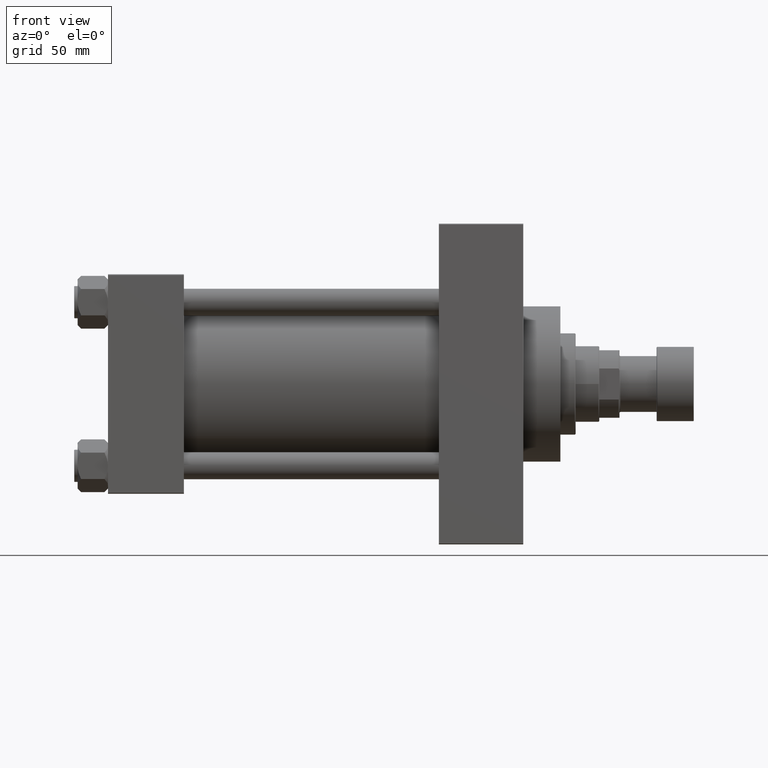
[diagram: clean part render]
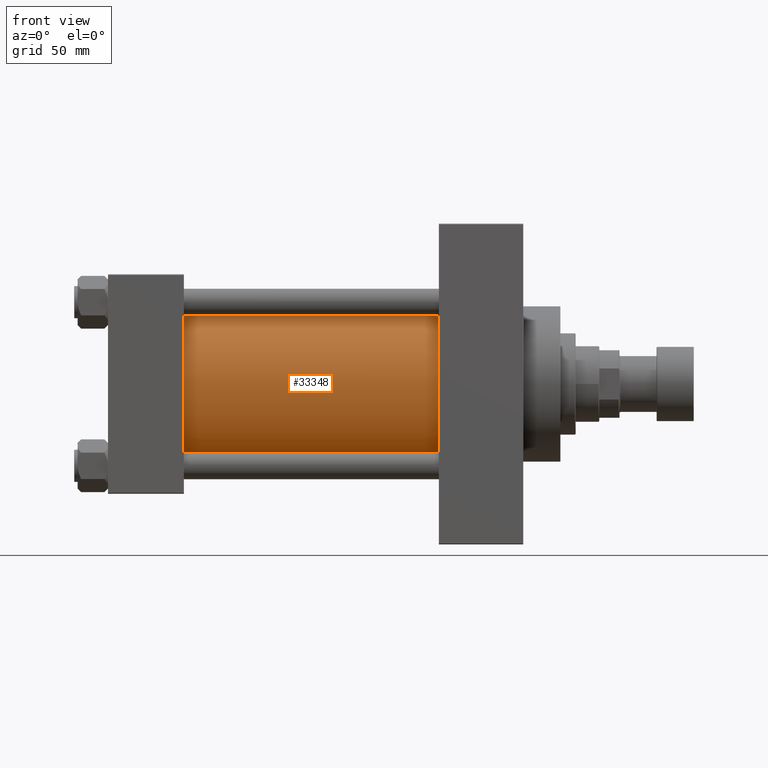
[diagram: same view with one face highlighted and labeled with its STEP entity id]
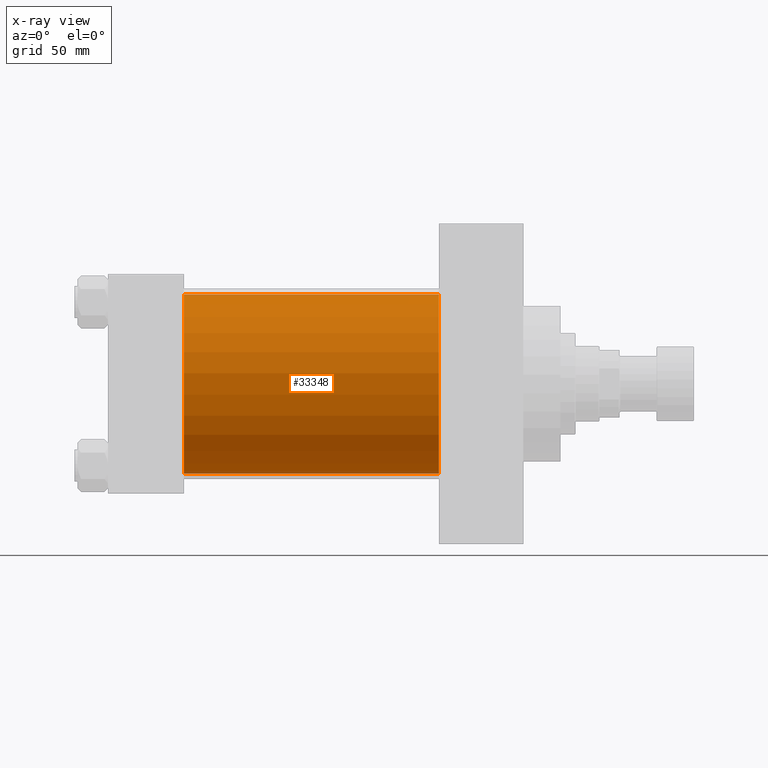
[diagram: x-ray of the same camera — body ghosted, the highlighted face saturated]
A machine part, front view. The second image highlights one B-rep face of the part: STEP entity #33348.
The next image is the same camera in x-ray: the body ghosted, the highlighted face saturated — about 2% of this face is hidden behind the body in this view.
In plain terms, the highlighted cylindrical surface (partial cylindrical patch) has radius 53 mm, axis along (-1, -0, -0).
Its self-contained STEP definition (entity closure, byte-faithful):
#329 = EDGE_LOOP ( 'NONE', ( #33036, #21031, #33994, #26674 ) ) ;
#1617 = CIRCLE ( 'NONE', #32701, 53.00000000000000711 ) ;
#3156 = EDGE_CURVE ( 'NONE', #4679, #5238, #30748, .T. ) ;
#4679 = VERTEX_POINT ( 'NONE', #46498 ) ;
#5238 = VERTEX_POINT ( 'NONE', #5521 ) ;
#5521 = CARTESIAN_POINT ( 'NONE',  ( 44.99999999999998579, 3.888542821515762466E-15, -53.00000000000000711 ) ) ;
#5703 = CARTESIAN_POINT ( 'NONE',  ( 44.99999999999998579, -2.602085213965210642E-15, 0.000000000000000000 ) ) ;
#7136 = CYLINDRICAL_SURFACE ( 'NONE', #8167, 53.00000000000000711 ) ;
#8167 = AXIS2_PLACEMENT_3D ( 'NONE', #21958, #36804, #33152 ) ;
#9575 = DIRECTION ( 'NONE',  ( 0.000000000000000000, 0.000000000000000000, 1.000000000000000000 ) ) ;
#10135 = DIRECTION ( 'NONE',  ( 0.000000000000000000, 0.000000000000000000, -1.000000000000000000 ) ) ;
#10800 = CARTESIAN_POINT ( 'NONE',  ( 196.0000000000000000, -2.602085213965210642E-15, 53.00000000000000711 ) ) ;
#14940 = CARTESIAN_POINT ( 'NONE',  ( 196.0000000000000000, -2.602085213965210642E-15, 53.00000000000000711 ) ) ;
#15620 = EDGE_CURVE ( 'NONE', #29397, #5238, #30593, .T. ) ;
#15686 = EDGE_CURVE ( 'NONE', #35020, #29397, #1617, .T. ) ;
#18637 = DIRECTION ( 'NONE',  ( 1.000000000000000000, 0.000000000000000000, 0.000000000000000000 ) ) ;
#19871 = AXIS2_PLACEMENT_3D ( 'NONE', #5703, #24654, #9575 ) ;
#21031 = ORIENTED_EDGE ( 'NONE', *, *, #15686, .F. ) ;
#21958 = CARTESIAN_POINT ( 'NONE',  ( 196.0000000000000000, -2.602085213965210642E-15, 0.000000000000000000 ) ) ;
#24654 = DIRECTION ( 'NONE',  ( 1.000000000000000000, -0.000000000000000000, 0.000000000000000000 ) ) ;
#25602 = FACE_OUTER_BOUND ( 'NONE', #329, .T. ) ;
#26464 = CARTESIAN_POINT ( 'NONE',  ( 196.0000000000000000, 3.888542821515762466E-15, -53.00000000000000711 ) ) ;
#26674 = ORIENTED_EDGE ( 'NONE', *, *, #3156, .T. ) ;
#29397 = VERTEX_POINT ( 'NONE', #30031 ) ;
#29548 = DIRECTION ( 'NONE',  ( -1.000000000000000000, -0.000000000000000000, -0.000000000000000000 ) ) ;
#30022 = LINE ( 'NONE', #14940, #43193 ) ;
#30031 = CARTESIAN_POINT ( 'NONE',  ( 196.0000000000000000, 3.888542821515762466E-15, -53.00000000000000711 ) ) ;
#30593 = LINE ( 'NONE', #26464, #45899 ) ;
#30748 = CIRCLE ( 'NONE', #19871, 53.00000000000000711 ) ;
#32701 = AXIS2_PLACEMENT_3D ( 'NONE', #43947, #18637, #10135 ) ;
#33036 = ORIENTED_EDGE ( 'NONE', *, *, #15620, .F. ) ;
#33152 = DIRECTION ( 'NONE',  ( 0.000000000000000000, 0.000000000000000000, 1.000000000000000000 ) ) ;
#33348 = ADVANCED_FACE ( 'NONE', ( #25602 ), #7136, .T. ) ;
#33994 = ORIENTED_EDGE ( 'NONE', *, *, #36666, .T. ) ;
#35020 = VERTEX_POINT ( 'NONE', #10800 ) ;
#36666 = EDGE_CURVE ( 'NONE', #35020, #4679, #30022, .T. ) ;
#36804 = DIRECTION ( 'NONE',  ( -1.000000000000000000, -0.000000000000000000, -0.000000000000000000 ) ) ;
#41320 = DIRECTION ( 'NONE',  ( -1.000000000000000000, -0.000000000000000000, -0.000000000000000000 ) ) ;
#43193 = VECTOR ( 'NONE', #29548, 1000.000000000000000 ) ;
#43947 = CARTESIAN_POINT ( 'NONE',  ( 196.0000000000000000, -2.602085213965210642E-15, 0.000000000000000000 ) ) ;
#45899 = VECTOR ( 'NONE', #41320, 1000.000000000000000 ) ;
#46498 = CARTESIAN_POINT ( 'NONE',  ( 44.99999999999998579, -2.602085213965210642E-15, 53.00000000000000711 ) ) ;